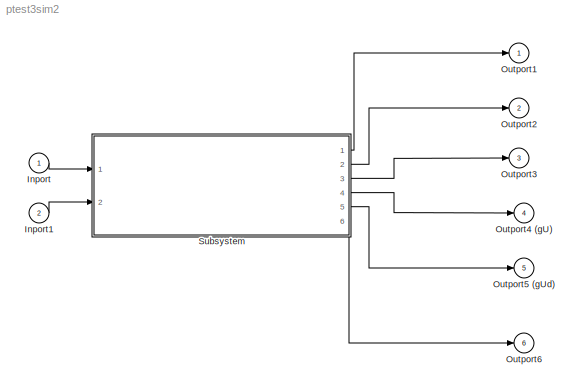
MODEL ptest3sim2
KIND model
CONFIG AbsTol = 1e-6
CONFIG FixedStep = auto
CONFIG MaxStep = 10
CONFIG MinStep = auto
CONFIG RelTol = 1e-3
CONFIG Solver = FixedStepDiscrete
CONFIG SolverMode = SingleTasking
CONFIG StartTime = 0.0
CONFIG StopTime = 999999
BLOCK [Inport] Inport
  Interpolate = on
  LatchInput = off
  Port = 1
  PortDimensions = 1
BLOCK [Inport] Inport1
  Interpolate = on
  LatchInput = off
  Port = 2
  PortDimensions = 1
BLOCK [Outport] Outport1
  InitialOutput = []
  OutputWhenDisabled = held
  Port = 1
BLOCK [Outport] Outport2
  InitialOutput = []
  OutputWhenDisabled = held
  Port = 2
BLOCK [Outport] Outport3
  InitialOutput = []
  OutputWhenDisabled = held
  Port = 3
BLOCK [Outport] Outport4 (gU)
  InitialOutput = []
  OutputWhenDisabled = held
  Port = 4
BLOCK [Outport] Outport5 (gUd)
  InitialOutput = []
  OutputWhenDisabled = held
  Port = 5
BLOCK [Outport] Outport6
  InitialOutput = []
  OutputWhenDisabled = held
  Port = 6
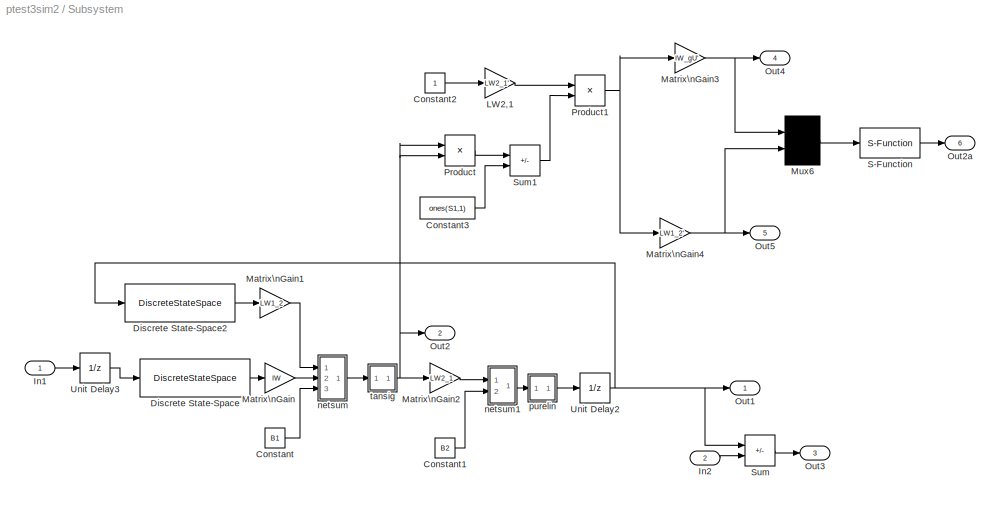
BLOCK [SubSystem] Subsystem
  MaskCallbackString = |||||||||||||||||||
  MaskEnableString = on,on,on,on,on,on,on,on,on,on,on,on,on,on,on,on,on,on,on,on
  MaskIconFrame = on
  MaskIconOpaque = on
  MaskIconRotate = none
  MaskIconUnits = autoscale
  MaskPromptString = yd_init|y_init|ud_init|u_init|mint|maxt|minp|maxp|Ts|S1|Nu|Normalize|Nj|Ni|LW2_1|LW1_2|IW_gU|IW|B2|B1
  MaskStyleString = edit,edit,edit,edit,edit,edit,edit,edit,edit,edit,edit,edit,edit,edit,edit,edit,edit,edit,edit,edit
  MaskToolTipString = on,on,on,on,on,on,on,on,on,on,on,on,on,on,on,on,on,on,on,on
  MaskTunableValueString = on,on,on,on,on,on,on,on,on,on,on,on,on,on,on,on,on,on,on,on
  MaskValueString = |||||||||||||||||||
  MaskVarAliasString = ,,,,,,,,,,,,,,,,,,,
  MaskVariables = yd_init=@1;y_init=@2;ud_init=@3;u_init=@4;mint=@5;maxt=@6;minp=@7;maxp=@8;Ts=@9;S1=@10;Nu=@11;Normalize=@12;Nj=@13;Ni=@14;LW2_1=@15;LW1_2=@16;IW_gU=@17;IW=@18;B2=@19;B1=@20;
  MaskVisibilityString = on,on,on,on,on,on,on,on,on,on,on,on,on,on,on,on,on,on,on,on
  Ports = [2, 6]
  RTWFcnNameOpts = Auto
  RTWFileNameOpts = Auto
  RTWSystemCode = Auto
  ShowPortLabels = on
  TreatAsAtomicUnit = off
BLOCK [Constant] Subsystem/Constant
  Value = B1
  VectorParams1D = on
BLOCK [Constant] Subsystem/Constant1
  Value = B2
  VectorParams1D = on
BLOCK [Constant] Subsystem/Constant2
  Value = 1
  VectorParams1D = on
BLOCK [Constant] Subsystem/Constant3
  Value = ones(S1,1)
  VectorParams1D = on
BLOCK [DiscreteStateSpace] Subsystem/Discrete State-Space
  A = [0 zeros(1,Ni-2);eye(Ni-2,Ni-1)]
  B = [zeros(double(Ni==1));eye(Ni-1,1)]
  C = [0 zeros(1,Ni-2);eye(Ni-1,Ni-1)]
  D = eye(Ni,1)
  RTWStateStorageClass = Auto
  Realization = auto
  SampleTime = Ts
  X0 = ud_init
BLOCK [DiscreteStateSpace] Subsystem/Discrete State-Space2
  A = [0 zeros(1,Nj-2);eye(Nj-2,Nj-1)]
  B = [zeros(double(Nj==1));eye(Nj-1,1)]
  C = [0 zeros(1,Nj-2);eye(Nj-1,Nj-1)]
  D = eye(Nj,1)
  RTWStateStorageClass = Auto
  Realization = auto
  SampleTime = Ts
  X0 = yd_init
BLOCK [Inport] Subsystem/In1
  Interpolate = on
  LatchInput = off
  Port = 1
BLOCK [Inport] Subsystem/In2
  Interpolate = on
  LatchInput = off
  Port = 2
BLOCK [Gain] Subsystem/LW2,1
  Gain = LW2_1'
  Multiplication = Matrix(K*u)
  SaturateOnIntegerOverflow = on
BLOCK [Gain] Subsystem/Matrix\nGain
  Gain = IW
  Multiplication = Matrix(K*u)
  SaturateOnIntegerOverflow = on
BLOCK [Gain] Subsystem/Matrix\nGain1
  Gain = LW1_2
  Multiplication = Matrix(K*u)
  SaturateOnIntegerOverflow = on
BLOCK [Gain] Subsystem/Matrix\nGain2
  Gain = LW2_1
  Multiplication = Matrix(K*u)
  SaturateOnIntegerOverflow = on
BLOCK [Gain] Subsystem/Matrix\nGain3
  Gain = IW_gU'
  Multiplication = Matrix(K*u)
  SaturateOnIntegerOverflow = on
BLOCK [Gain] Subsystem/Matrix\nGain4
  Gain = LW1_2'
  Multiplication = Matrix(K*u)
  SaturateOnIntegerOverflow = on
BLOCK [Mux] Subsystem/Mux6
  DisplayOption = none
  Inputs = 2
  Ports = [2, 1]
BLOCK [Outport] Subsystem/Out1
  InitialOutput = []
  OutputWhenDisabled = held
  Port = 1
BLOCK [Outport] Subsystem/Out2
  InitialOutput = []
  OutputWhenDisabled = held
  Port = 2
BLOCK [Outport] Subsystem/Out2a
  InitialOutput = []
  OutputWhenDisabled = held
  Port = 6
BLOCK [Outport] Subsystem/Out3
  InitialOutput = []
  OutputWhenDisabled = held
  Port = 3
BLOCK [Outport] Subsystem/Out4
  InitialOutput = []
  OutputWhenDisabled = held
  Port = 4
BLOCK [Outport] Subsystem/Out5
  InitialOutput = []
  OutputWhenDisabled = held
  Port = 5
BLOCK [Product] Subsystem/Product
  Inputs = 2
  Multiplication = Element-wise(.*)
  Ports = [2, 1]
  SaturateOnIntegerOverflow = on
BLOCK [Product] Subsystem/Product1
  Inputs = 2
  Multiplication = Element-wise(.*)
  Ports = [2, 1]
  SaturateOnIntegerOverflow = on
BLOCK [S-Function] Subsystem/S-Function
  FunctionName = dyduvar
  Parameters = Nu,Ni,Nj,Ts,minp,maxp,mint,maxt,Normalize
  PortCounts = []
  Ports = [1, 1]
  SFunctionModules = ''
BLOCK [Sum] Subsystem/Sum
  IconShape = rectangular
  Inputs = -+
  Ports = [2, 1]
  SaturateOnIntegerOverflow = on
BLOCK [Sum] Subsystem/Sum1
  IconShape = rectangular
  Inputs = -+
  Ports = [2, 1]
  SaturateOnIntegerOverflow = on
BLOCK [UnitDelay] Subsystem/Unit Delay2
  RTWStateStorageClass = Auto
  SampleTime = Ts
  X0 = y_init
BLOCK [UnitDelay] Subsystem/Unit Delay3
  RTWStateStorageClass = Auto
  SampleTime = Ts
  X0 = u_init
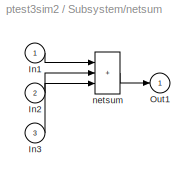
BLOCK [SubSystem] Subsystem/netsum
  MaskDisplay = disp('+')
  MaskIconFrame = on
  MaskIconOpaque = on
  MaskIconRotate = none
  MaskIconUnits = autoscale
  Ports = [3, 1]
  RTWFcnNameOpts = Auto
  RTWFileNameOpts = Auto
  RTWSystemCode = Auto
  ShowPortLabels = on
  TreatAsAtomicUnit = off
BLOCK [Inport] Subsystem/netsum/In1
  Interpolate = on
  LatchInput = off
  Port = 1
BLOCK [Inport] Subsystem/netsum/In2
  Interpolate = on
  LatchInput = off
  Port = 2
BLOCK [Inport] Subsystem/netsum/In3
  Interpolate = on
  LatchInput = off
  Port = 3
BLOCK [Outport] Subsystem/netsum/Out1
  InitialOutput = []
  OutputWhenDisabled = held
  Port = 1
BLOCK [Sum] Subsystem/netsum/netsum
  IconShape = rectangular
  Inputs = 3
  Ports = [3, 1]
  SaturateOnIntegerOverflow = on
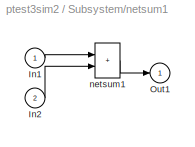
BLOCK [SubSystem] Subsystem/netsum1
  MaskDisplay = disp('+')
  MaskIconFrame = on
  MaskIconOpaque = on
  MaskIconRotate = none
  MaskIconUnits = autoscale
  Ports = [2, 1]
  RTWFcnNameOpts = Auto
  RTWFileNameOpts = Auto
  RTWSystemCode = Auto
  ShowPortLabels = on
  TreatAsAtomicUnit = off
BLOCK [Inport] Subsystem/netsum1/In1
  Interpolate = on
  LatchInput = off
  Port = 1
BLOCK [Inport] Subsystem/netsum1/In2
  Interpolate = on
  LatchInput = off
  Port = 2
BLOCK [Outport] Subsystem/netsum1/Out1
  InitialOutput = []
  OutputWhenDisabled = held
  Port = 1
BLOCK [Sum] Subsystem/netsum1/netsum1
  IconShape = rectangular
  Inputs = 2
  Ports = [2, 1]
  SaturateOnIntegerOverflow = on
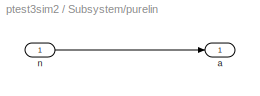
BLOCK [SubSystem] Subsystem/purelin
  MaskDisplay = plot([-1 1],[0 0],[-1 1],[-1 1])
  MaskIconFrame = on
  MaskIconOpaque = on
  MaskIconRotate = none
  MaskIconUnits = autoscale
  Ports = [1, 1]
  RTWFcnNameOpts = Auto
  RTWFileNameOpts = Auto
  RTWSystemCode = Auto
  ShowPortLabels = on
  TreatAsAtomicUnit = off
BLOCK [Outport] Subsystem/purelin/a
  InitialOutput = []
  OutputWhenDisabled = held
  Port = 1
BLOCK [Inport] Subsystem/purelin/n
  Interpolate = on
  LatchInput = off
  Port = 1
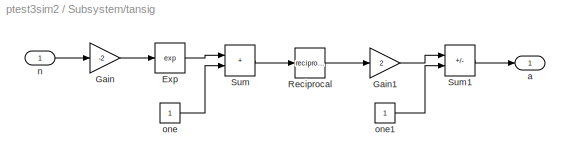
BLOCK [SubSystem] Subsystem/tansig
  MaskDisplay = plot([-1 1],[0 0],[-1 -.9 -.8 -.7 -.6 -.5 -.4 -.3 -.2 -.1 0 .1 .2 .3 .4 .5 .6 .7 .8 .9 1],2./(1+exp(-8*[-1 -.9 -.8 -.7 -.6 -.5 -.4 -.3 -.2 -.1 0 .1 .2 .3 .4 .5 .6 .7 .8 .9 1]))-1)
  MaskIconFrame = on
  MaskIconOpaque = on
  MaskIconRotate = none
  MaskIconUnits = autoscale
  Ports = [1, 1]
  RTWFcnNameOpts = Auto
  RTWFileNameOpts = Auto
  RTWSystemCode = Auto
  ShowPortLabels = on
  TreatAsAtomicUnit = off
BLOCK [Math] Subsystem/tansig/Exp
  MaskIconFrame = on
  MaskIconOpaque = on
  MaskIconRotate = none
  MaskIconUnits = autoscale
  Operator = exp
  OutputSignalType = auto
  Ports = [1, 1]
BLOCK [Gain] Subsystem/tansig/Gain
  Gain = -2
  Multiplication = Element-wise(K.*u)
  SaturateOnIntegerOverflow = on
BLOCK [Gain] Subsystem/tansig/Gain1
  Gain = 2
  Multiplication = Element-wise(K.*u)
  SaturateOnIntegerOverflow = on
BLOCK [Math] Subsystem/tansig/Reciprocal
  MaskIconFrame = on
  MaskIconOpaque = on
  MaskIconRotate = none
  MaskIconUnits = autoscale
  Operator = reciprocal
  OutputSignalType = auto
  Ports = [1, 1]
BLOCK [Sum] Subsystem/tansig/Sum
  IconShape = rectangular
  Inputs = ++
  Ports = [2, 1]
  SaturateOnIntegerOverflow = on
BLOCK [Sum] Subsystem/tansig/Sum1
  IconShape = rectangular
  Inputs = +-
  Ports = [2, 1]
  SaturateOnIntegerOverflow = on
BLOCK [Outport] Subsystem/tansig/a
  InitialOutput = []
  OutputWhenDisabled = held
  Port = 1
BLOCK [Inport] Subsystem/tansig/n
  Interpolate = on
  LatchInput = off
  Port = 1
BLOCK [Constant] Subsystem/tansig/one
  Value = 1
  VectorParams1D = on
BLOCK [Constant] Subsystem/tansig/one1
  Value = 1
  VectorParams1D = on
LINE Inport1:1 -> Subsystem:2
LINE Inport:1 -> Subsystem:1
LINE Subsystem/Constant1:1 -> Subsystem/netsum1:2
LINE Subsystem/Constant2:1 -> Subsystem/LW2,1:1
LINE Subsystem/Constant3:1 -> Subsystem/Sum1:2
LINE Subsystem/Constant:1 -> Subsystem/netsum:3
LINE Subsystem/Discrete State-Space2:1 -> Subsystem/Matrix\nGain1:1
LINE Subsystem/Discrete State-Space:1 -> Subsystem/Matrix\nGain:1
LINE Subsystem/In1:1 -> Subsystem/Unit Delay3:1
LINE Subsystem/In2:1 -> Subsystem/Sum:2
LINE Subsystem/LW2,1:1 -> Subsystem/Product1:1
LINE Subsystem/Matrix\nGain1:1 -> Subsystem/netsum:1
LINE Subsystem/Matrix\nGain2:1 -> Subsystem/netsum1:1
NET Subsystem/Matrix\nGain3:1 -> Subsystem/Mux6:1, Subsystem/Out4:1
NET Subsystem/Matrix\nGain4:1 -> Subsystem/Mux6:2, Subsystem/Out5:1
LINE Subsystem/Matrix\nGain:1 -> Subsystem/netsum:2
LINE Subsystem/Mux6:1 -> Subsystem/S-Function:1
NET Subsystem/Product1:1 -> Subsystem/Matrix\nGain3:1, Subsystem/Matrix\nGain4:1
LINE Subsystem/Product:1 -> Subsystem/Sum1:1
LINE Subsystem/S-Function:1 -> Subsystem/Out2a:1
LINE Subsystem/Sum1:1 -> Subsystem/Product1:2
LINE Subsystem/Sum:1 -> Subsystem/Out3:1
NET Subsystem/Unit Delay2:1 -> Subsystem/Discrete State-Space2:1, Subsystem/Out1:1, Subsystem/Sum:1
LINE Subsystem/Unit Delay3:1 -> Subsystem/Discrete State-Space:1
LINE Subsystem/netsum/In1:1 -> Subsystem/netsum/netsum:1
LINE Subsystem/netsum/In2:1 -> Subsystem/netsum/netsum:2
LINE Subsystem/netsum/In3:1 -> Subsystem/netsum/netsum:3
LINE Subsystem/netsum/netsum:1 -> Subsystem/netsum/Out1:1
LINE Subsystem/netsum1/In1:1 -> Subsystem/netsum1/netsum1:1
LINE Subsystem/netsum1/In2:1 -> Subsystem/netsum1/netsum1:2
LINE Subsystem/netsum1/netsum1:1 -> Subsystem/netsum1/Out1:1
LINE Subsystem/netsum1:1 -> Subsystem/purelin:1
LINE Subsystem/netsum:1 -> Subsystem/tansig:1
LINE Subsystem/purelin/n:1 -> Subsystem/purelin/a:1
LINE Subsystem/purelin:1 -> Subsystem/Unit Delay2:1
LINE Subsystem/tansig/Exp:1 -> Subsystem/tansig/Sum:1
LINE Subsystem/tansig/Gain1:1 -> Subsystem/tansig/Sum1:1
LINE Subsystem/tansig/Gain:1 -> Subsystem/tansig/Exp:1
LINE Subsystem/tansig/Reciprocal:1 -> Subsystem/tansig/Gain1:1
LINE Subsystem/tansig/Sum1:1 -> Subsystem/tansig/a:1
LINE Subsystem/tansig/Sum:1 -> Subsystem/tansig/Reciprocal:1
LINE Subsystem/tansig/n:1 -> Subsystem/tansig/Gain:1
LINE Subsystem/tansig/one1:1 -> Subsystem/tansig/Sum1:2
LINE Subsystem/tansig/one:1 -> Subsystem/tansig/Sum:2
NET Subsystem/tansig:1 -> Subsystem/Matrix\nGain2:1, Subsystem/Out2:1, Subsystem/Product:1, Subsystem/Product:2
LINE Subsystem:1 -> Outport1:1
LINE Subsystem:2 -> Outport2:1
LINE Subsystem:3 -> Outport3:1
LINE Subsystem:4 -> Outport4 (gU):1
LINE Subsystem:5 -> Outport5 (gUd):1
LINE Subsystem:6 -> Outport6:1
note: NET lines group one-source signal fan-out (src -> all destinations, sorted); 1:1 wires keep LINE
